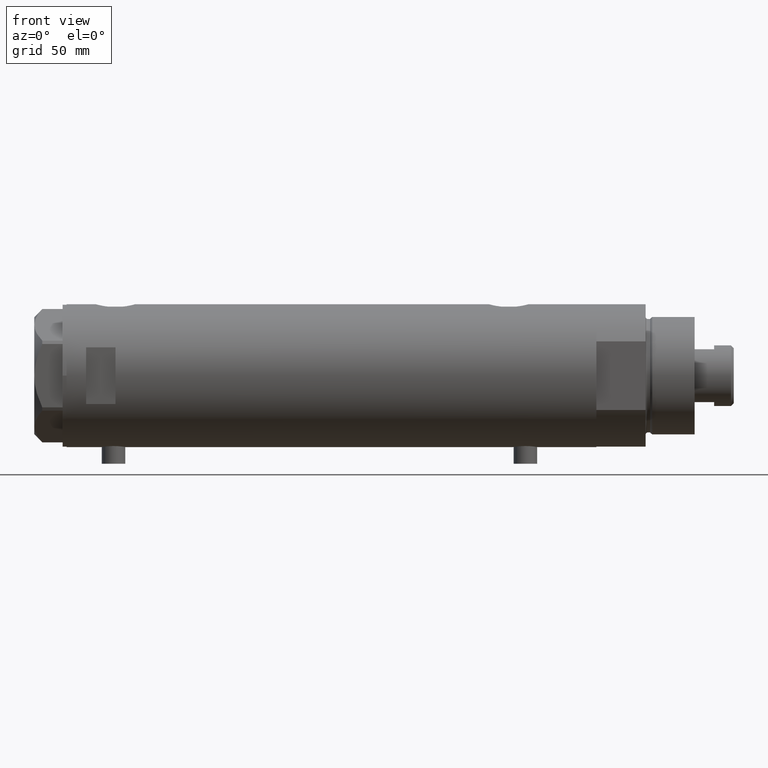
[diagram: clean part render]
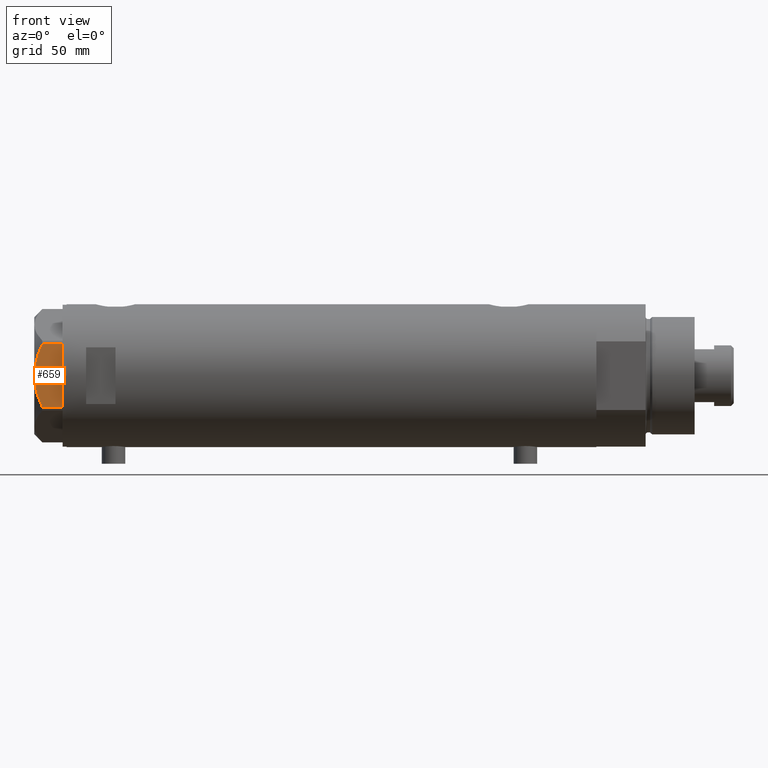
[diagram: same view with one face highlighted and labeled with its STEP entity id]
A machine part, front view. The second image highlights one B-rep face of the part: STEP entity #659.
In plain terms, the highlighted planar face has unit normal (-0, 1, 0).
Its self-contained STEP definition (entity closure, byte-faithful):
#34 = VECTOR ( 'NONE', #2416, 1000.000000000000000 ) ;
#51 = CARTESIAN_POINT ( 'NONE',  ( -30.00000000000000000, 0.000000000000000000, 14.50000000000000000 ) ) ;
#424 = VERTEX_POINT ( 'NONE', #2541 ) ;
#515 = CARTESIAN_POINT ( 'NONE',  ( -30.00000000000000000, -16.20050807568876294, 14.50000000000000000 ) ) ;
#651 = CARTESIAN_POINT ( 'NONE',  ( -29.99999999999999645, -2.827567415490778835, 14.37523681947611109 ) ) ;
#659 = ADVANCED_FACE ( 'NONE', ( #3114 ), #2758, .F. ) ;
#727 = EDGE_CURVE ( 'NONE', #1393, #424, #1370, .T. ) ;
#926 = EDGE_CURVE ( 'NONE', #1073, #3671, #3199, .T. ) ;
#979 = CARTESIAN_POINT ( 'NONE',  ( -30.00000000000001421, 14.93680064777130312, 11.00564802993687508 ) ) ;
#1057 = DIRECTION ( 'NONE',  ( 1.000000000000000000, 0.000000000000000000, -0.000000000000000000 ) ) ;
#1073 = VERTEX_POINT ( 'NONE', #2371 ) ;
#1129 = VECTOR ( 'NONE', #4306, 1000.000000000000000 ) ;
#1242 = ORIENTED_EDGE ( 'NONE', *, *, #926, .T. ) ;
#1252 = CARTESIAN_POINT ( 'NONE',  ( -30.00000000000000000, 16.20050807568875584, 10.40518423703603546 ) ) ;
#1278 = B_SPLINE_CURVE_WITH_KNOTS ( 'NONE', 3,
 ( #1996, #3703, #2327, #651, #3393, #3367, #1678, #3040, #3086, #3752, #4436, #1323, #3063, #3683 ),
 .UNSPECIFIED., .F., .F.,
 ( 4, 2, 2, 2, 2, 2, 4 ),
 ( 0.06183748343640969869, 0.06393495742991751885, 0.06603243142342535288, 0.07022737941044099319, 0.07442232739745664738, 0.07651980139096448141, 0.07861727538447230157 ),
 .UNSPECIFIED. ) ;
#1323 = CARTESIAN_POINT ( 'NONE',  ( -29.99999999999999289, -14.92797448277034533, 10.99622797424084553 ) ) ;
#1370 = LINE ( 'NONE', #3424, #34 ) ;
#1393 = VERTEX_POINT ( 'NONE', #1252 ) ;
#1429 = CARTESIAN_POINT ( 'NONE',  ( -30.00000000000000355, 10.99748736931232607, 12.55407623651775495 ) ) ;
#1549 = VECTOR ( 'NONE', #1871, 1000.000000000000000 ) ;
#1678 = CARTESIAN_POINT ( 'NONE',  ( -30.00000000000000000, -6.973771051792319042, 13.72753822183687511 ) ) ;
#1691 = CARTESIAN_POINT ( 'NONE',  ( -30.00000000000000000, 16.20050807568875584, 10.40518423703603546 ) ) ;
#1805 = B_SPLINE_CURVE_WITH_KNOTS ( 'NONE', 3,
 ( #1691, #979, #2348, #2819, #1429, #2045, #2797, #3510, #3123, #51 ),
 .UNSPECIFIED., .F., .F.,
 ( 4, 2, 2, 2, 4 ),
 ( 0.04501738275285960267, 0.04922240792374713014, 0.05132492050919089388, 0.05342743309463465068, 0.06183748343640969869 ),
 .UNSPECIFIED. ) ;
#1871 = DIRECTION ( 'NONE',  ( 0.000000000000000000, 0.000000000000000000, 1.000000000000000000 ) ) ;
#1996 = CARTESIAN_POINT ( 'NONE',  ( -30.00000000000000000, 0.000000000000000000, 14.50000000000000000 ) ) ;
#2045 = CARTESIAN_POINT ( 'NONE',  ( -30.00000000000000000, 9.655259153795977767, 12.99093232113973606 ) ) ;
#2327 = CARTESIAN_POINT ( 'NONE',  ( -30.00000000000000355, -1.418661615092686290, 14.47469700449902952 ) ) ;
#2348 = CARTESIAN_POINT ( 'NONE',  ( -30.00000000000000355, 13.64854889245356695, 11.56384586935411996 ) ) ;
#2371 = CARTESIAN_POINT ( 'NONE',  ( -30.00000000000000000, -16.20050807568876294, 0.000000000000000000 ) ) ;
#2416 = DIRECTION ( 'NONE',  ( 0.000000000000000000, 0.000000000000000000, -1.000000000000000000 ) ) ;
#2495 = LINE ( 'NONE', #2903, #1129 ) ;
#2541 = CARTESIAN_POINT ( 'NONE',  ( -30.00000000000000000, 16.20050807568875584, 0.000000000000000000 ) ) ;
#2758 = PLANE ( 'NONE',  #3859 ) ;
#2797 = CARTESIAN_POINT ( 'NONE',  ( -30.00000000000000711, 8.981118657900116986, 13.19130745470829247 ) ) ;
#2819 = CARTESIAN_POINT ( 'NONE',  ( -30.00000000000000000, 11.66725319103952607, 12.31690447555093293 ) ) ;
#2903 = CARTESIAN_POINT ( 'NONE',  ( -30.00000000000000000, 17.32050807568877460, 0.000000000000000000 ) ) ;
#2978 = EDGE_CURVE ( 'NONE', #424, #1073, #2495, .T. ) ;
#3019 = VERTEX_POINT ( 'NONE', #3232 ) ;
#3040 = CARTESIAN_POINT ( 'NONE',  ( -29.99999999999999645, -9.671229349009038856, 13.00645148086949554 ) ) ;
#3063 = CARTESIAN_POINT ( 'NONE',  ( -29.99999999999999289, -15.56759648729806322, 10.70591879357992227 ) ) ;
#3086 = CARTESIAN_POINT ( 'NONE',  ( -30.00000000000000000, -11.00230860792644982, 12.56933207488871673 ) ) ;
#3114 = FACE_OUTER_BOUND ( 'NONE', #3459, .T. ) ;
#3123 = CARTESIAN_POINT ( 'NONE',  ( -30.00000000000000711, 2.830925467268496476, 14.50000000000000533 ) ) ;
#3199 = LINE ( 'NONE', #515, #1549 ) ;
#3232 = CARTESIAN_POINT ( 'NONE',  ( -30.00000000000000000, 0.000000000000000000, 14.50000000000000000 ) ) ;
#3367 = CARTESIAN_POINT ( 'NONE',  ( -29.99999999999999289, -5.607365453019637513, 14.01139032121647965 ) ) ;
#3393 = CARTESIAN_POINT ( 'NONE',  ( -30.00000000000000000, -3.526431665117130798, 14.30125973663612626 ) ) ;
#3394 = ORIENTED_EDGE ( 'NONE', *, *, #2978, .T. ) ;
#3413 = EDGE_CURVE ( 'NONE', #1393, #3019, #1805, .T. ) ;
#3424 = CARTESIAN_POINT ( 'NONE',  ( -30.00000000000000000, 16.20050807568875584, 14.50000000000000000 ) ) ;
#3459 = EDGE_LOOP ( 'NONE', ( #3894, #3592, #3394, #1242, #4268 ) ) ;
#3510 = CARTESIAN_POINT ( 'NONE',  ( -30.00000000000000000, 5.593935073701701732, 14.09487059093540573 ) ) ;
#3592 = ORIENTED_EDGE ( 'NONE', *, *, #727, .T. ) ;
#3671 = VERTEX_POINT ( 'NONE', #3841 ) ;
#3683 = CARTESIAN_POINT ( 'NONE',  ( -30.00000000000000000, -16.20050807568876294, 10.40518423703603901 ) ) ;
#3703 = CARTESIAN_POINT ( 'NONE',  ( -30.00000000000000000, -0.7060353153488233557, 14.49999999999999822 ) ) ;
#3752 = CARTESIAN_POINT ( 'NONE',  ( -29.99999999999999645, -12.97715359595204809, 11.81918444541430624 ) ) ;
#3817 = DIRECTION ( 'NONE',  ( -0.000000000000000000, 0.000000000000000000, -1.000000000000000000 ) ) ;
#3841 = CARTESIAN_POINT ( 'NONE',  ( -30.00000000000000000, -16.20050807568876294, 10.40518423703603901 ) ) ;
#3859 = AXIS2_PLACEMENT_3D ( 'NONE', #4161, #1057, #3817 ) ;
#3894 = ORIENTED_EDGE ( 'NONE', *, *, #3413, .F. ) ;
#3904 = EDGE_CURVE ( 'NONE', #3019, #3671, #1278, .T. ) ;
#4161 = CARTESIAN_POINT ( 'NONE',  ( -30.00000000000000000, 17.32050807568877460, 14.50000000000000000 ) ) ;
#4268 = ORIENTED_EDGE ( 'NONE', *, *, #3904, .F. ) ;
#4306 = DIRECTION ( 'NONE',  ( 0.000000000000000000, -1.000000000000000000, 0.000000000000000000 ) ) ;
#4436 = CARTESIAN_POINT ( 'NONE',  ( -29.99999999999999289, -13.63320717147166405, 11.55272916346384804 ) ) ;